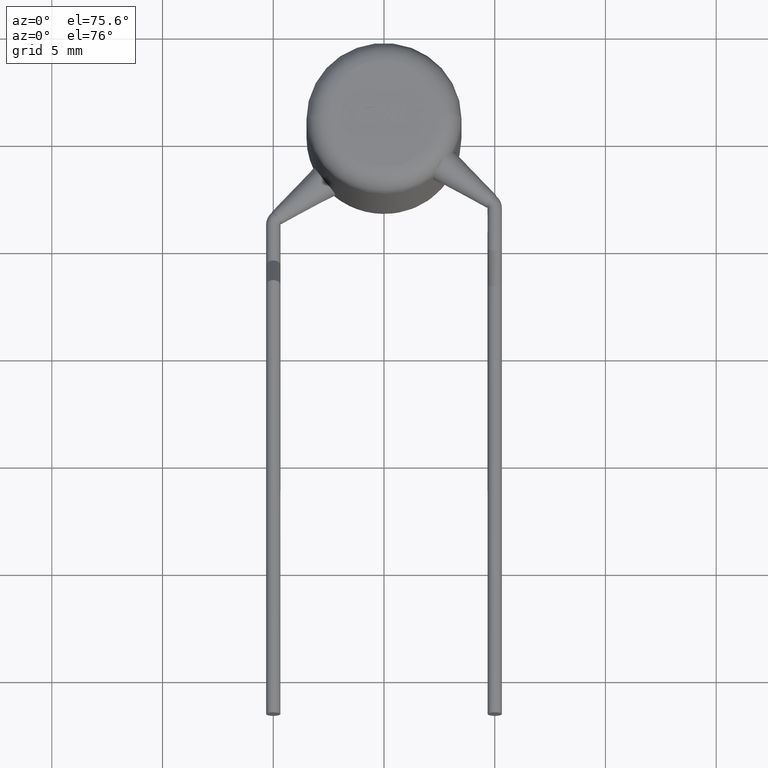
[diagram: clean part render]
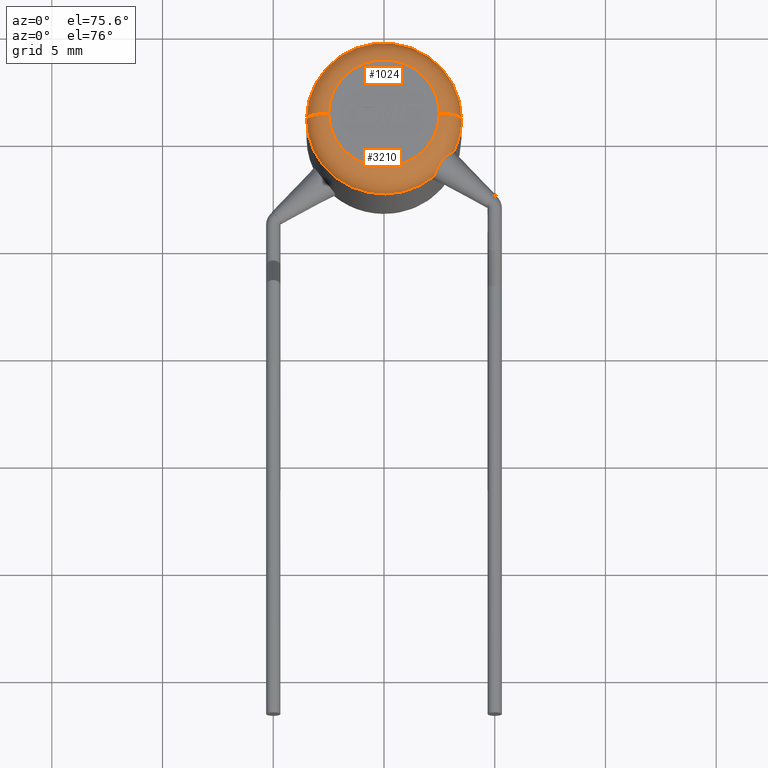
[diagram: same view with one multi-face feature highlighted, each face labeled with its STEP entity id]
A machine part, auxiliary view. The highlighted faces form ONE feature: a constant-radius fillet chain: 2 tangent blend faces with common blend radius 1 mm. The faces share edges in the B-rep.
Their STEP definitions:
[1] entity #1024 (Torus):
#10 = CIRCLE ( 'NONE', #1638, 3.499999999999999600 ) ;
#123 = AXIS2_PLACEMENT_3D ( 'NONE', #1708, #1420, #3788 ) ;
#234 = DIRECTION ( 'NONE',  ( -0.0000000000000000000, -0.0000000000000000000, -1.000000000000000000 ) ) ;
#270 = CIRCLE ( 'NONE', #1739, 1.000000000000000000 ) ;
#331 = VERTEX_POINT ( 'NONE', #1072 ) ;
#354 = DIRECTION ( 'NONE',  ( 1.224646799147353200E-016, 1.000000000000000000, -0.0000000000000000000 ) ) ;
#684 = EDGE_LOOP ( 'NONE', ( #1162, #2267, #2854, #2409 ) ) ;
#710 = DIRECTION ( 'NONE',  ( -1.000000000000000000, 1.224646799147353000E-016, 0.0000000000000000000 ) ) ;
#779 = CARTESIAN_POINT ( 'NONE',  ( 0.0000000000000000000, 0.0000000000000000000, 5.500000000000000000 ) ) ;
#887 = EDGE_CURVE ( 'NONE', #3618, #4197, #1488, .T. ) ;
#1024 = ADVANCED_FACE ( 'NONE', ( #2168 ), #3364, .T. ) ;
#1068 = EDGE_CURVE ( 'NONE', #4197, #3249, #3657, .T. ) ;
#1072 = CARTESIAN_POINT ( 'NONE',  ( -3.499999999999999600, 0.0000000000000000000, 4.500000000000000000 ) ) ;
#1091 = DIRECTION ( 'NONE',  ( 1.000000000000000000, 0.0000000000000000000, 0.0000000000000000000 ) ) ;
#1113 = CARTESIAN_POINT ( 'NONE',  ( 3.499999999999999600, 4.286263797015736100E-016, 4.500000000000000000 ) ) ;
#1162 = ORIENTED_EDGE ( 'NONE', *, *, #3689, .F. ) ;
#1163 = DIRECTION ( 'NONE',  ( 1.000000000000000000, 0.0000000000000000000, 0.0000000000000000000 ) ) ;
#1178 = CARTESIAN_POINT ( 'NONE',  ( 0.0000000000000000000, 0.0000000000000000000, 4.500000000000000000 ) ) ;
#1288 = CARTESIAN_POINT ( 'NONE',  ( 2.499999999999999600, 0.0000000000000000000, 5.500000000000000000 ) ) ;
#1420 = DIRECTION ( 'NONE',  ( 0.0000000000000000000, 0.0000000000000000000, 1.000000000000000000 ) ) ;
#1488 = CIRCLE ( 'NONE', #3532, 1.000000000000000000 ) ;
#1638 = AXIS2_PLACEMENT_3D ( 'NONE', #1178, #234, #1163 ) ;
#1708 = CARTESIAN_POINT ( 'NONE',  ( 0.0000000000000000000, 0.0000000000000000000, 4.500000000000000000 ) ) ;
#1739 = AXIS2_PLACEMENT_3D ( 'NONE', #4245, #354, #710 ) ;
#1977 = DIRECTION ( 'NONE',  ( 0.0000000000000000000, -1.000000000000000000, 0.0000000000000000000 ) ) ;
#2168 = FACE_OUTER_BOUND ( 'NONE', #684, .T. ) ;
#2267 = ORIENTED_EDGE ( 'NONE', *, *, #3005, .T. ) ;
#2409 = ORIENTED_EDGE ( 'NONE', *, *, #887, .F. ) ;
#2854 = ORIENTED_EDGE ( 'NONE', *, *, #1068, .F. ) ;
#3005 = EDGE_CURVE ( 'NONE', #331, #3249, #270, .T. ) ;
#3107 = DIRECTION ( 'NONE',  ( 0.0000000000000000000, 0.0000000000000000000, 1.000000000000000000 ) ) ;
#3111 = CARTESIAN_POINT ( 'NONE',  ( -2.499999999999999600, 3.673940397442059400E-016, 5.500000000000000000 ) ) ;
#3249 = VERTEX_POINT ( 'NONE', #3111 ) ;
#3292 = CARTESIAN_POINT ( 'NONE',  ( 2.499999999999999600, 0.0000000000000000000, 4.500000000000000000 ) ) ;
#3329 = DIRECTION ( 'NONE',  ( 0.0000000000000000000, 0.0000000000000000000, -1.000000000000000000 ) ) ;
#3364 = TOROIDAL_SURFACE ( 'NONE', #123, 2.499999999999999600, 1.000000000000000000 ) ;
#3532 = AXIS2_PLACEMENT_3D ( 'NONE', #3292, #1977, #3329 ) ;
#3618 = VERTEX_POINT ( 'NONE', #1113 ) ;
#3657 = CIRCLE ( 'NONE', #4208, 2.499999999999999600 ) ;
#3689 = EDGE_CURVE ( 'NONE', #331, #3618, #10, .T. ) ;
#3788 = DIRECTION ( 'NONE',  ( 1.000000000000000000, 0.0000000000000000000, 0.0000000000000000000 ) ) ;
#4197 = VERTEX_POINT ( 'NONE', #1288 ) ;
#4208 = AXIS2_PLACEMENT_3D ( 'NONE', #779, #3107, #1091 ) ;
#4245 = CARTESIAN_POINT ( 'NONE',  ( -2.499999999999999600, 3.061616997868382600E-016, 4.500000000000000000 ) ) ;
[2] entity #3210 (Torus):
#73 = CARTESIAN_POINT ( 'NONE',  ( 3.152061750976623300, -1.521350294320866100, 4.500000000000000000 ) ) ;
#111 = ORIENTED_EDGE ( 'NONE', *, *, #3005, .F. ) ;
#270 = CIRCLE ( 'NONE', #1739, 1.000000000000000000 ) ;
#331 = VERTEX_POINT ( 'NONE', #1072 ) ;
#354 = DIRECTION ( 'NONE',  ( 1.224646799147353200E-016, 1.000000000000000000, -0.0000000000000000000 ) ) ;
#378 = AXIS2_PLACEMENT_3D ( 'NONE', #2315, #2993, #1375 ) ;
#427 = CARTESIAN_POINT ( 'NONE',  ( 2.239761204830261300, -2.689511060646023300, 4.500000000000015100 ) ) ;
#541 = CIRCLE ( 'NONE', #2548, 2.499999999999999600 ) ;
#710 = DIRECTION ( 'NONE',  ( -1.000000000000000000, 1.224646799147353000E-016, 0.0000000000000000000 ) ) ;
#887 = EDGE_CURVE ( 'NONE', #3618, #4197, #1488, .T. ) ;
#953 = FACE_OUTER_BOUND ( 'NONE', #4199, .T. ) ;
#956 = VERTEX_POINT ( 'NONE', #73 ) ;
#1032 = AXIS2_PLACEMENT_3D ( 'NONE', #2067, #2741, #2700 ) ;
#1072 = CARTESIAN_POINT ( 'NONE',  ( -3.499999999999999600, 0.0000000000000000000, 4.500000000000000000 ) ) ;
#1107 = CARTESIAN_POINT ( 'NONE',  ( 0.0000000000000000000, 0.0000000000000000000, 4.500000000000000000 ) ) ;
#1113 = CARTESIAN_POINT ( 'NONE',  ( 3.499999999999999600, 4.286263797015736100E-016, 4.500000000000000000 ) ) ;
#1288 = CARTESIAN_POINT ( 'NONE',  ( 2.499999999999999600, 0.0000000000000000000, 5.500000000000000000 ) ) ;
#1346 = B_SPLINE_CURVE_WITH_KNOTS ( 'NONE', 3,
 ( #427, #3390, #1377, #3080, #1409, #1742, #3093, #2083, #4082, #3707, #2757, #1893 ),
 .UNSPECIFIED., .F., .F.,
 ( 4, 2, 2, 2, 2, 4 ),
 ( 2.092810053510954200E-007, 0.0004905380041024504700, 0.0009808667271995498700, 0.001226031088748099200, 0.001471195450296648300, 0.001961524173393745600 ),
 .UNSPECIFIED. ) ;
#1375 = DIRECTION ( 'NONE',  ( 1.000000000000000000, 0.0000000000000000000, 0.0000000000000000000 ) ) ;
#1377 = CARTESIAN_POINT ( 'NONE',  ( 2.329280552332801100, -2.564251733739663300, 4.793223012630218900 ) ) ;
#1409 = CARTESIAN_POINT ( 'NONE',  ( 2.529522651476402200, -2.184967392451354000, 5.044861065407339100 ) ) ;
#1488 = CIRCLE ( 'NONE', #3532, 1.000000000000000000 ) ;
#1535 = ORIENTED_EDGE ( 'NONE', *, *, #1629, .F. ) ;
#1629 = EDGE_CURVE ( 'NONE', #3249, #4197, #541, .T. ) ;
#1739 = AXIS2_PLACEMENT_3D ( 'NONE', #4245, #354, #710 ) ;
#1742 = CARTESIAN_POINT ( 'NONE',  ( 2.680539105216924100, -1.991282723221931200, 5.045313411611848800 ) ) ;
#1775 = DIRECTION ( 'NONE',  ( 0.0000000000000000000, 0.0000000000000000000, 1.000000000000000000 ) ) ;
#1818 = ORIENTED_EDGE ( 'NONE', *, *, #3222, .T. ) ;
#1893 = CARTESIAN_POINT ( 'NONE',  ( 3.152061750976623300, -1.521350294320866100, 4.500000000000000000 ) ) ;
#1977 = DIRECTION ( 'NONE',  ( 0.0000000000000000000, -1.000000000000000000, 0.0000000000000000000 ) ) ;
#2067 = CARTESIAN_POINT ( 'NONE',  ( 0.0000000000000000000, 0.0000000000000000000, 4.500000000000000000 ) ) ;
#2083 = CARTESIAN_POINT ( 'NONE',  ( 2.846907670657548000, -1.820381144946774600, 4.979095910848352300 ) ) ;
#2139 = VERTEX_POINT ( 'NONE', #3067 ) ;
#2166 = ORIENTED_EDGE ( 'NONE', *, *, #3348, .F. ) ;
#2251 = ORIENTED_EDGE ( 'NONE', *, *, #887, .T. ) ;
#2268 = TOROIDAL_SURFACE ( 'NONE', #1032, 2.499999999999999600, 1.000000000000000000 ) ;
#2313 = CIRCLE ( 'NONE', #2683, 3.499999999999999600 ) ;
#2315 = CARTESIAN_POINT ( 'NONE',  ( 0.0000000000000000000, 0.0000000000000000000, 4.500000000000000000 ) ) ;
#2529 = ORIENTED_EDGE ( 'NONE', *, *, #3804, .F. ) ;
#2548 = AXIS2_PLACEMENT_3D ( 'NONE', #4096, #1775, #4128 ) ;
#2683 = AXIS2_PLACEMENT_3D ( 'NONE', #1107, #2803, #3140 ) ;
#2700 = DIRECTION ( 'NONE',  ( 1.000000000000000000, 0.0000000000000000000, 0.0000000000000000000 ) ) ;
#2741 = DIRECTION ( 'NONE',  ( 0.0000000000000000000, 0.0000000000000000000, 1.000000000000000000 ) ) ;
#2757 = CARTESIAN_POINT ( 'NONE',  ( 3.127740054559208000, -1.571742034667952300, 4.656238015486101400 ) ) ;
#2803 = DIRECTION ( 'NONE',  ( -0.0000000000000000000, -0.0000000000000000000, -1.000000000000000000 ) ) ;
#2993 = DIRECTION ( 'NONE',  ( -0.0000000000000000000, -0.0000000000000000000, -1.000000000000000000 ) ) ;
#3005 = EDGE_CURVE ( 'NONE', #331, #3249, #270, .T. ) ;
#3067 = CARTESIAN_POINT ( 'NONE',  ( 2.239761204830261300, -2.689511060646023300, 4.500000000000015100 ) ) ;
#3080 = CARTESIAN_POINT ( 'NONE',  ( 2.451822862968959800, -2.328274254976494100, 4.988868021024616800 ) ) ;
#3093 = CARTESIAN_POINT ( 'NONE',  ( 2.736208590735645700, -1.930080467947040500, 5.031556530008165500 ) ) ;
#3111 = CARTESIAN_POINT ( 'NONE',  ( -2.499999999999999600, 3.673940397442059400E-016, 5.500000000000000000 ) ) ;
#3140 = DIRECTION ( 'NONE',  ( 1.000000000000000000, 0.0000000000000000000, 0.0000000000000000000 ) ) ;
#3210 = ADVANCED_FACE ( 'NONE', ( #953 ), #2268, .T. ) ;
#3222 = EDGE_CURVE ( 'NONE', #2139, #956, #1346, .T. ) ;
#3249 = VERTEX_POINT ( 'NONE', #3111 ) ;
#3292 = CARTESIAN_POINT ( 'NONE',  ( 2.499999999999999600, 0.0000000000000000000, 4.500000000000000000 ) ) ;
#3329 = DIRECTION ( 'NONE',  ( 0.0000000000000000000, 0.0000000000000000000, -1.000000000000000000 ) ) ;
#3348 = EDGE_CURVE ( 'NONE', #3618, #956, #2313, .T. ) ;
#3390 = CARTESIAN_POINT ( 'NONE',  ( 2.282743557588152500, -2.653716373794524900, 4.656184856482353100 ) ) ;
#3532 = AXIS2_PLACEMENT_3D ( 'NONE', #3292, #1977, #3329 ) ;
#3618 = VERTEX_POINT ( 'NONE', #1113 ) ;
#3698 = CIRCLE ( 'NONE', #378, 3.499999999999999600 ) ;
#3707 = CARTESIAN_POINT ( 'NONE',  ( 3.051270365717105600, -1.639388039294097200, 4.794483805552807200 ) ) ;
#3804 = EDGE_CURVE ( 'NONE', #2139, #331, #3698, .T. ) ;
#4082 = CARTESIAN_POINT ( 'NONE',  ( 2.902079479457632300, -1.771231477639724400, 4.940486425777949700 ) ) ;
#4096 = CARTESIAN_POINT ( 'NONE',  ( 0.0000000000000000000, 0.0000000000000000000, 5.500000000000000000 ) ) ;
#4128 = DIRECTION ( 'NONE',  ( 1.000000000000000000, 0.0000000000000000000, 0.0000000000000000000 ) ) ;
#4197 = VERTEX_POINT ( 'NONE', #1288 ) ;
#4199 = EDGE_LOOP ( 'NONE', ( #111, #2529, #1818, #2166, #2251, #1535 ) ) ;
#4245 = CARTESIAN_POINT ( 'NONE',  ( -2.499999999999999600, 3.061616997868382600E-016, 4.500000000000000000 ) ) ;